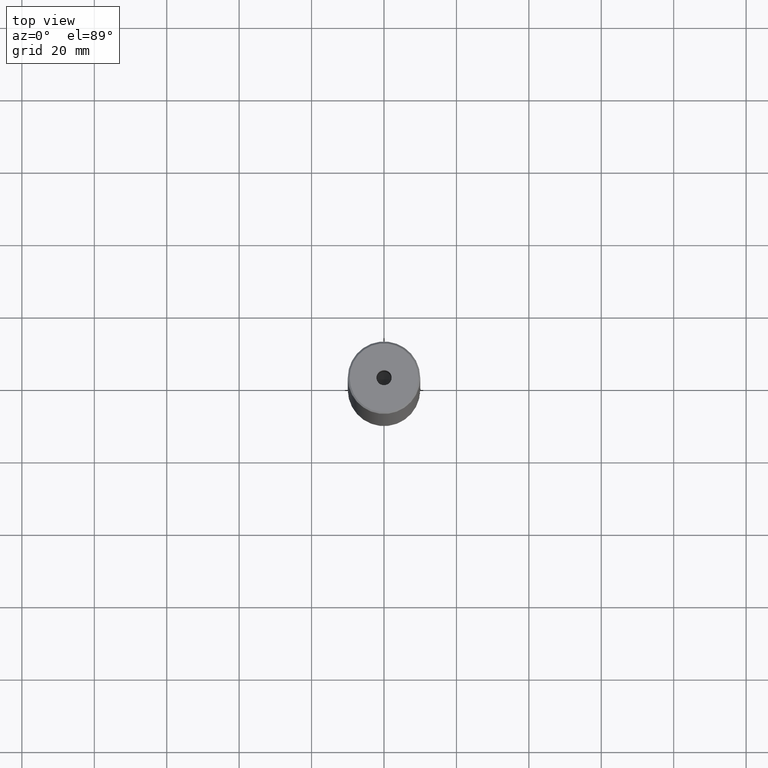
[diagram: clean part render]
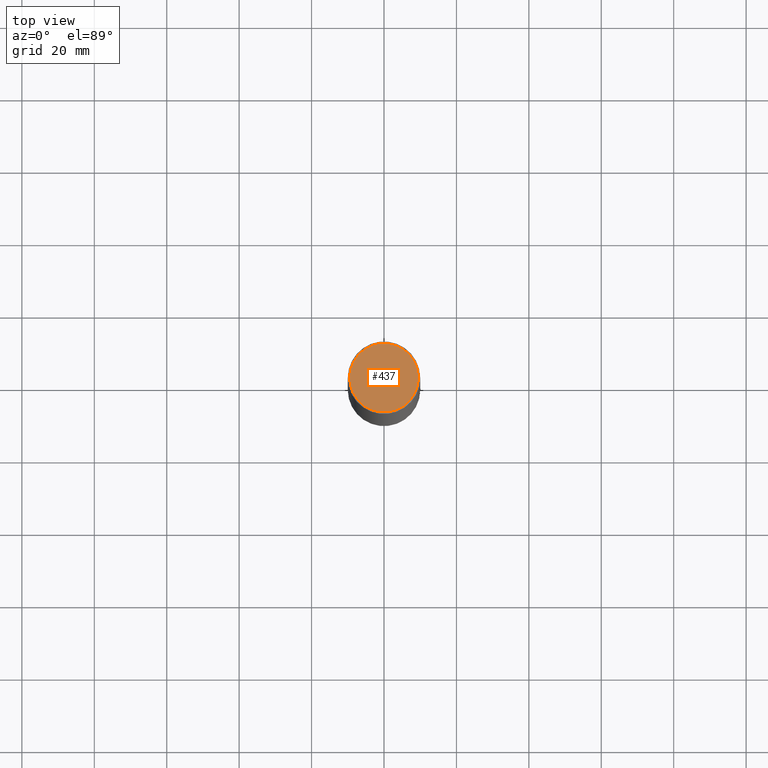
[diagram: same view with one face highlighted and labeled with its STEP entity id]
A machine part, top view. The second image highlights one B-rep face of the part: STEP entity #437.
In plain terms, the highlighted planar face has unit normal (0, -0, 1).
Its self-contained STEP definition (entity closure, byte-faithful):
#56 = CARTESIAN_POINT ( 'NONE',  ( 0.000000000000000000, 0.000000000000000000, 0.000000000000000000 ) ) ;
#62 = DIRECTION ( 'NONE',  ( 1.000000000000000000, 0.000000000000000000, 0.000000000000000000 ) ) ;
#87 = DIRECTION ( 'NONE',  ( 1.000000000000000000, 0.000000000000000000, 0.000000000000000000 ) ) ;
#93 = ORIENTED_EDGE ( 'NONE', *, *, #137, .F. ) ;
#108 = DIRECTION ( 'NONE',  ( -0.000000000000000000, -0.000000000000000000, 1.000000000000000000 ) ) ;
#129 = ORIENTED_EDGE ( 'NONE', *, *, #131, .F. ) ;
#130 = FACE_OUTER_BOUND ( 'NONE', #451, .T. ) ;
#131 = EDGE_CURVE ( 'NONE', #378, #343, #477, .T. ) ;
#137 = EDGE_CURVE ( 'NONE', #343, #378, #374, .T. ) ;
#161 = DIRECTION ( 'NONE',  ( -0.000000000000000000, -0.000000000000000000, 1.000000000000000000 ) ) ;
#196 = DIRECTION ( 'NONE',  ( -0.000000000000000000, -0.000000000000000000, 1.000000000000000000 ) ) ;
#199 = CARTESIAN_POINT ( 'NONE',  ( 0.000000000000000000, 0.000000000000000000, -1.990051048614449116E-16 ) ) ;
#209 = CIRCLE ( 'NONE', #539, 9.500000000000008882 ) ;
#247 = DIRECTION ( 'NONE',  ( -0.000000000000000000, -0.000000000000000000, 1.000000000000000000 ) ) ;
#251 = CARTESIAN_POINT ( 'NONE',  ( 2.099999999999998757, 0.000000000000000000, -1.990051048614449116E-16 ) ) ;
#266 = ORIENTED_EDGE ( 'NONE', *, *, #298, .T. ) ;
#272 = VERTEX_POINT ( 'NONE', #557 ) ;
#289 = DIRECTION ( 'NONE',  ( 1.000000000000000000, 0.000000000000000000, 0.000000000000000000 ) ) ;
#296 = AXIS2_PLACEMENT_3D ( 'NONE', #199, #161, #473 ) ;
#298 = EDGE_CURVE ( 'NONE', #459, #272, #504, .T. ) ;
#308 = CARTESIAN_POINT ( 'NONE',  ( 0.000000000000000000, 0.000000000000000000, 0.000000000000000000 ) ) ;
#314 = PLANE ( 'NONE',  #333 ) ;
#333 = AXIS2_PLACEMENT_3D ( 'NONE', #308, #498, #87 ) ;
#343 = VERTEX_POINT ( 'NONE', #251 ) ;
#374 = CIRCLE ( 'NONE', #296, 2.099999999999998757 ) ;
#375 = AXIS2_PLACEMENT_3D ( 'NONE', #56, #108, #62 ) ;
#378 = VERTEX_POINT ( 'NONE', #398 ) ;
#392 = CARTESIAN_POINT ( 'NONE',  ( 0.000000000000000000, 0.000000000000000000, 0.000000000000000000 ) ) ;
#398 = CARTESIAN_POINT ( 'NONE',  ( -2.099999999999998757, 2.571758278209440478E-16, -1.990051048614449116E-16 ) ) ;
#431 = AXIS2_PLACEMENT_3D ( 'NONE', #522, #196, #441 ) ;
#437 = ADVANCED_FACE ( 'NONE', ( #492, #130 ), #314, .T. ) ;
#439 = CARTESIAN_POINT ( 'NONE',  ( 9.500000000000008882, 1.194030629168669864E-15, 0.000000000000000000 ) ) ;
#441 = DIRECTION ( 'NONE',  ( 1.000000000000000000, 0.000000000000000000, 0.000000000000000000 ) ) ;
#451 = EDGE_LOOP ( 'NONE', ( #550, #266 ) ) ;
#459 = VERTEX_POINT ( 'NONE', #439 ) ;
#473 = DIRECTION ( 'NONE',  ( 1.000000000000000000, 0.000000000000000000, 0.000000000000000000 ) ) ;
#477 = CIRCLE ( 'NONE', #431, 2.099999999999998757 ) ;
#492 = FACE_BOUND ( 'NONE', #513, .T. ) ;
#498 = DIRECTION ( 'NONE',  ( 0.000000000000000000, -0.000000000000000000, 1.000000000000000000 ) ) ;
#504 = CIRCLE ( 'NONE', #375, 9.500000000000008882 ) ;
#513 = EDGE_LOOP ( 'NONE', ( #93, #129 ) ) ;
#522 = CARTESIAN_POINT ( 'NONE',  ( 0.000000000000000000, 0.000000000000000000, -1.990051048614449116E-16 ) ) ;
#537 = EDGE_CURVE ( 'NONE', #272, #459, #209, .T. ) ;
#539 = AXIS2_PLACEMENT_3D ( 'NONE', #392, #247, #289 ) ;
#550 = ORIENTED_EDGE ( 'NONE', *, *, #537, .T. ) ;
#557 = CARTESIAN_POINT ( 'NONE',  ( -9.500000000000008882, 0.000000000000000000, 0.000000000000000000 ) ) ;